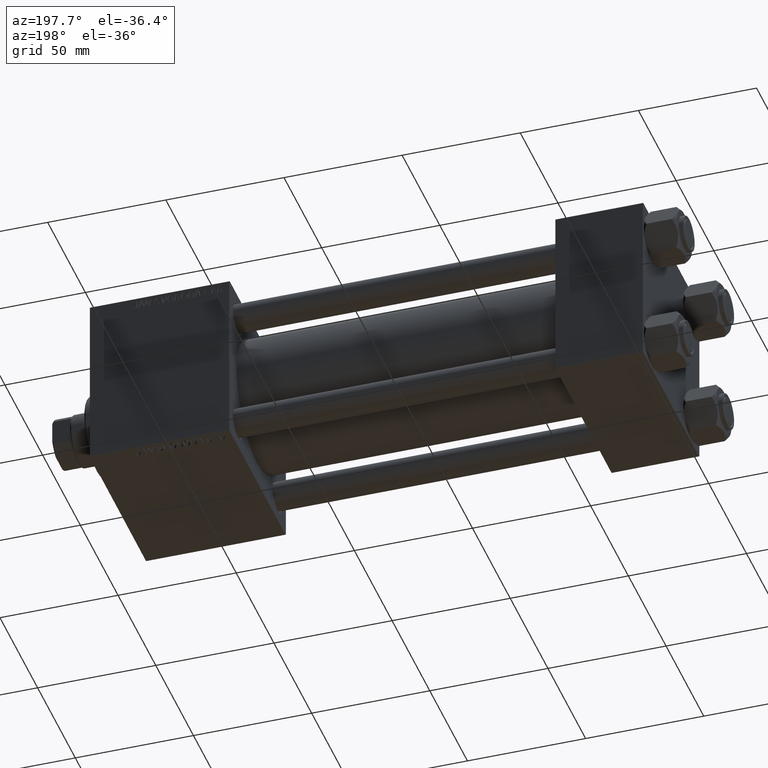
[diagram: clean part render]
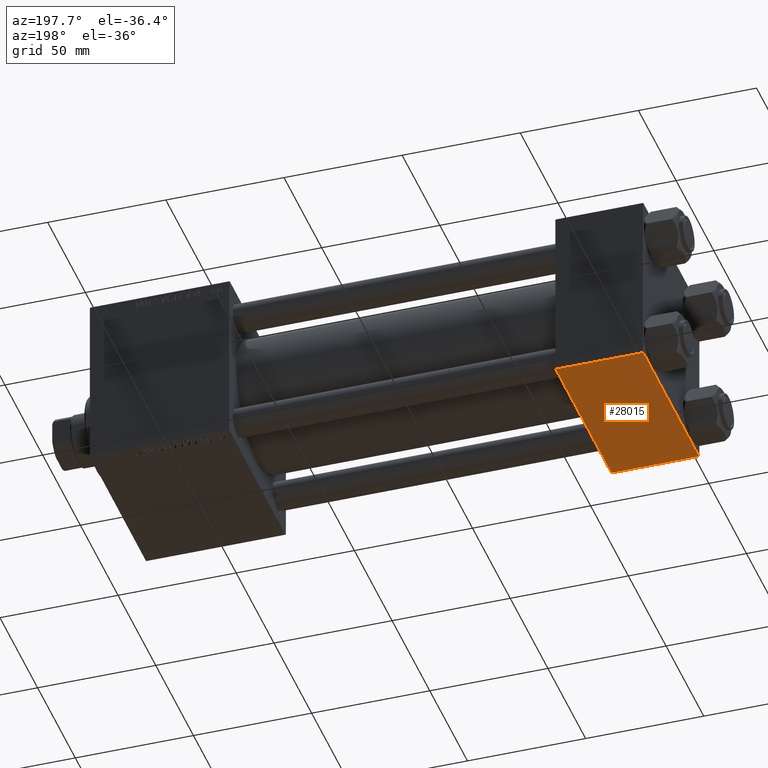
[diagram: same view with one face highlighted and labeled with its STEP entity id]
A machine part, auxiliary view. The second image highlights one B-rep face of the part: STEP entity #28015.
In plain terms, the highlighted planar face has unit normal (0, 0, -1).
Its self-contained STEP definition (entity closure, byte-faithful):
#186 = AXIS2_PLACEMENT_3D ( 'NONE', #37166, #2395, #24722 ) ;
#962 = CARTESIAN_POINT ( 'NONE',  ( 0.000000000000000000, 37.49999999999999289, -37.50000000000000000 ) ) ;
#1850 = DIRECTION ( 'NONE',  ( 0.000000000000000000, -1.000000000000000000, -9.251858538542972814E-17 ) ) ;
#2395 = DIRECTION ( 'NONE',  ( 0.000000000000000000, 9.251858538542972814E-17, -1.000000000000000000 ) ) ;
#3238 = DIRECTION ( 'NONE',  ( 1.000000000000000000, 0.000000000000000000, 0.000000000000000000 ) ) ;
#5007 = DIRECTION ( 'NONE',  ( 0.000000000000000000, -1.000000000000000000, -9.251858538542972814E-17 ) ) ;
#6220 = VERTEX_POINT ( 'NONE', #6481 ) ;
#6481 = CARTESIAN_POINT ( 'NONE',  ( 37.00000000000000000, -37.00000000000002132, -37.50000000000000711 ) ) ;
#9747 = VECTOR ( 'NONE', #3238, 1000.000000000000000 ) ;
#14408 = ORIENTED_EDGE ( 'NONE', *, *, #20271, .T. ) ;
#14437 = EDGE_CURVE ( 'NONE', #44864, #31871, #35725, .T. ) ;
#15381 = CARTESIAN_POINT ( 'NONE',  ( 0.000000000000000000, -37.00000000000002132, -37.50000000000000711 ) ) ;
#16130 = EDGE_LOOP ( 'NONE', ( #34703, #48527, #14408, #31641 ) ) ;
#20271 = EDGE_CURVE ( 'NONE', #20660, #6220, #37124, .T. ) ;
#20660 = VERTEX_POINT ( 'NONE', #20694 ) ;
#20694 = CARTESIAN_POINT ( 'NONE',  ( 37.00000000000000000, 36.99999999999997868, -37.50000000000000000 ) ) ;
#22456 = VECTOR ( 'NONE', #43160, 1000.000000000000000 ) ;
#22514 = LINE ( 'NONE', #38011, #9747 ) ;
#24103 = LINE ( 'NONE', #28662, #22456 ) ;
#24266 = EDGE_CURVE ( 'NONE', #44864, #20660, #22514, .T. ) ;
#24722 = DIRECTION ( 'NONE',  ( 0.000000000000000000, 1.000000000000000000, 9.251858538542972814E-17 ) ) ;
#24962 = VECTOR ( 'NONE', #5007, 1000.000000000000000 ) ;
#28015 = ADVANCED_FACE ( 'NONE', ( #33091 ), #48597, .T. ) ;
#28662 = CARTESIAN_POINT ( 'NONE',  ( 0.000000000000000000, -37.00000000000002132, -37.50000000000000711 ) ) ;
#29083 = VECTOR ( 'NONE', #1850, 1000.000000000000000 ) ;
#31641 = ORIENTED_EDGE ( 'NONE', *, *, #42243, .T. ) ;
#31871 = VERTEX_POINT ( 'NONE', #15381 ) ;
#33091 = FACE_OUTER_BOUND ( 'NONE', #16130, .T. ) ;
#34703 = ORIENTED_EDGE ( 'NONE', *, *, #14437, .F. ) ;
#35725 = LINE ( 'NONE', #962, #24962 ) ;
#36980 = CARTESIAN_POINT ( 'NONE',  ( 0.000000000000000000, 36.99999999999997868, -37.50000000000000000 ) ) ;
#37124 = LINE ( 'NONE', #40170, #29083 ) ;
#37166 = CARTESIAN_POINT ( 'NONE',  ( 37.00000000000000000, 37.49999999999999289, -37.50000000000000000 ) ) ;
#38011 = CARTESIAN_POINT ( 'NONE',  ( 37.00000000000000000, 36.99999999999997868, -37.50000000000000000 ) ) ;
#40170 = CARTESIAN_POINT ( 'NONE',  ( 37.00000000000000000, 37.49999999999999289, -37.50000000000000000 ) ) ;
#42243 = EDGE_CURVE ( 'NONE', #6220, #31871, #24103, .T. ) ;
#43160 = DIRECTION ( 'NONE',  ( -1.000000000000000000, 0.000000000000000000, 0.000000000000000000 ) ) ;
#44864 = VERTEX_POINT ( 'NONE', #36980 ) ;
#48527 = ORIENTED_EDGE ( 'NONE', *, *, #24266, .T. ) ;
#48597 = PLANE ( 'NONE',  #186 ) ;